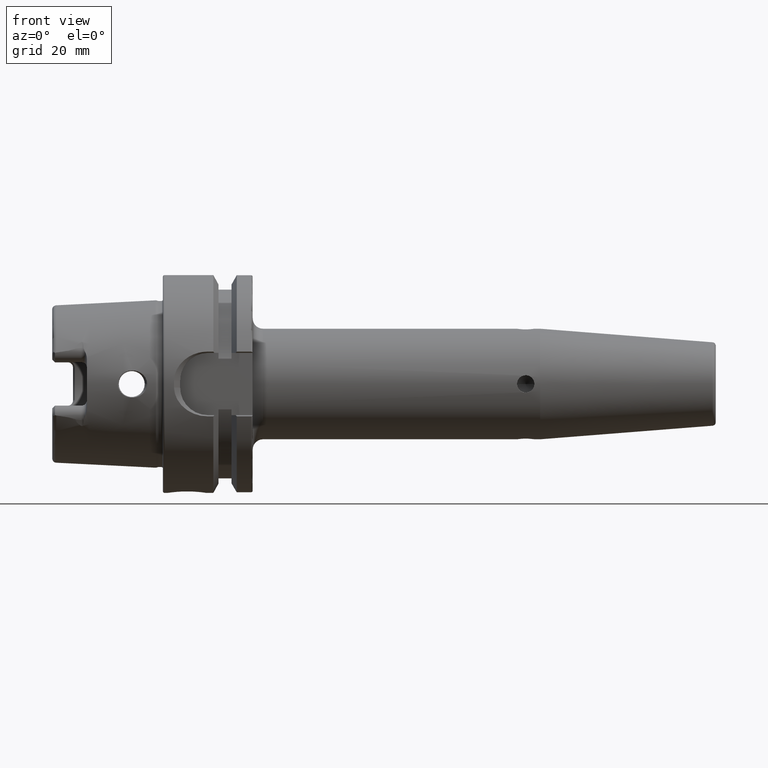
[diagram: clean part render]
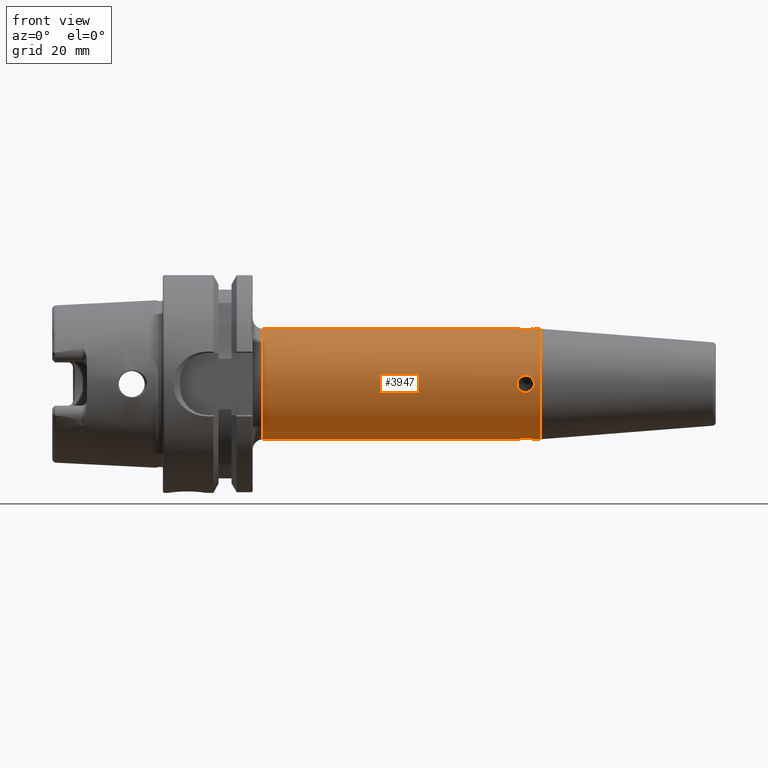
[diagram: same view with one face highlighted and labeled with its STEP entity id]
A machine part, front view. The second image highlights one B-rep face of the part: STEP entity #3947.
In plain terms, the highlighted cylindrical surface (partial cylindrical patch) has radius 16 mm, axis along (1, 0, 0).
Its self-contained STEP definition (entity closure, byte-faithful):
#633=CARTESIAN_POINT('',(1.025E2,0.E0,1.6E1));
#646=CARTESIAN_POINT('',(1.075E2,0.E0,1.6E1));
#653=CARTESIAN_POINT('',(1.075E2,0.E0,-1.6E1));
#666=CARTESIAN_POINT('',(1.025E2,0.E0,-1.6E1));
#717=CARTESIAN_POINT('',(1.075E2,0.E0,1.6E1));
#718=CARTESIAN_POINT('',(1.075E2,-2.406910848106E-1,1.6E1));
#719=CARTESIAN_POINT('',(1.074335961199E2,-7.030030814854E-1,1.598942771882E1));
#720=CARTESIAN_POINT('',(1.071362185885E2,-1.365384792778E0,1.594565535037E1));
#721=CARTESIAN_POINT('',(1.066601899238E2,-1.914087789380E0,1.588742890798E1));
#722=CARTESIAN_POINT('',(1.060599425325E2,-2.302352925106E0,1.583439882307E1));
#723=CARTESIAN_POINT('',(1.053576263392E2,-2.508910881645E0,1.580211606748E1));
#724=CARTESIAN_POINT('',(1.046450275450E2,-2.509216912070E0,1.580206431659E1));
#725=CARTESIAN_POINT('',(1.039431041754E2,-2.303772434312E0,1.583418811362E1));
#726=CARTESIAN_POINT('',(1.033415148570E2,-1.915686332052E0,1.588723540130E1));
#727=CARTESIAN_POINT('',(1.028646847672E2,-1.366917028250E0,1.594552943384E1));
#728=CARTESIAN_POINT('',(1.025665444615E2,-7.038092738104E-1,1.598940382258E1));
#729=CARTESIAN_POINT('',(1.025E2,-2.409867561258E-1,1.6E1));
#730=CARTESIAN_POINT('',(1.025E2,0.E0,1.6E1));
#732=DIRECTION('',(-1.E0,0.E0,0.E0));
#733=VECTOR('',#732,1.675181055301E0);
#734=CARTESIAN_POINT('',(1.091751810553E2,0.E0,1.6E1));
#735=LINE('',#734,#733);
#736=CARTESIAN_POINT('',(1.091751810553E2,0.E0,0.E0));
#737=DIRECTION('',(-1.E0,0.E0,0.E0));
#738=DIRECTION('',(0.E0,0.E0,-1.E0));
#739=AXIS2_PLACEMENT_3D('',#736,#737,#738);
#741=DIRECTION('',(-1.E0,0.E0,0.E0));
#742=VECTOR('',#741,1.675181055301E0);
#743=CARTESIAN_POINT('',(1.091751810553E2,0.E0,-1.6E1));
#744=LINE('',#743,#742);
#745=CARTESIAN_POINT('',(1.025E2,0.E0,-1.6E1));
#746=CARTESIAN_POINT('',(1.025E2,-2.406001388972E-1,-1.6E1));
#747=CARTESIAN_POINT('',(1.025663892994E2,-7.027867262808E-1,
-1.598943176391E1));
#748=CARTESIAN_POINT('',(1.028634103262E2,-1.364826019784E0,-1.594570458819E1));
#749=CARTESIAN_POINT('',(1.033396906555E2,-1.914006851844E0,-1.588744174269E1));
#750=CARTESIAN_POINT('',(1.039396702269E2,-2.302161643642E0,-1.583442579601E1));
#751=CARTESIAN_POINT('',(1.046422486256E2,-2.508933582476E0,-1.580211345539E1));
#752=CARTESIAN_POINT('',(1.053549658485E2,-2.509188780435E0,-1.580206792476E1));
#753=CARTESIAN_POINT('',(1.060565514701E2,-2.303933008733E0,-1.583416521607E1));
#754=CARTESIAN_POINT('',(1.066584611405E2,-1.915716327169E0,-1.588723091854E1));
#755=CARTESIAN_POINT('',(1.071351349981E2,-1.367174506705E0,-1.594550629517E1));
#756=CARTESIAN_POINT('',(1.074334434609E2,-7.039318050395E-1,
-1.598940088701E1));
#757=CARTESIAN_POINT('',(1.075E2,-2.410388216912E-1,-1.6E1));
#758=CARTESIAN_POINT('',(1.075E2,0.E0,-1.6E1));
#760=DIRECTION('',(-1.E0,6.403454297422E-12,0.E0));
#761=VECTOR('',#760,7.35E1);
#762=CARTESIAN_POINT('',(1.025E2,0.E0,-1.6E1));
#763=LINE('',#762,#761);
#764=CARTESIAN_POINT('',(2.9E1,0.E0,0.E0));
#765=DIRECTION('',(1.E0,0.E0,0.E0));
#766=DIRECTION('',(0.E0,0.E0,1.E0));
#767=AXIS2_PLACEMENT_3D('',#764,#765,#766);
#769=DIRECTION('',(-1.E0,-6.403491517587E-12,0.E0));
#770=VECTOR('',#769,7.35E1);
#771=CARTESIAN_POINT('',(1.025E2,0.E0,1.6E1));
#772=LINE('',#771,#770);
#773=CARTESIAN_POINT('',(1.025E2,-1.6E1,0.E0));
#774=CARTESIAN_POINT('',(1.025E2,-1.6E1,2.648430568656E-1));
#775=CARTESIAN_POINT('',(1.025777814474E2,-1.598747692089E1,7.707641735075E-1));
#776=CARTESIAN_POINT('',(1.029518134384E2,-1.593336509168E1,1.509103475650E0));
#777=CARTESIAN_POINT('',(1.035231044026E2,-1.586783343282E1,2.069021119250E0));
#778=CARTESIAN_POINT('',(1.042460066680E2,-1.581536187345E1,2.427102617519E0));
#779=CARTESIAN_POINT('',(1.050014454735E2,-1.579791688637E1,2.534350807527E0));
#780=CARTESIAN_POINT('',(1.056789869897E2,-1.581387962556E1,2.435334417383E0));
#781=CARTESIAN_POINT('',(1.062709165975E2,-1.585128850274E1,2.184373179277E0));
#782=CARTESIAN_POINT('',(1.067865147204E2,-1.590188908293E1,1.789042367926E0));
#783=CARTESIAN_POINT('',(1.071932147221E2,-1.595381751234E1,1.262469368821E0));
#784=CARTESIAN_POINT('',(1.074486680134E2,-1.599182240470E1,6.304076466830E-1));
#785=CARTESIAN_POINT('',(1.075E2,-1.6E1,2.134258936478E-1));
#786=CARTESIAN_POINT('',(1.075E2,-1.6E1,0.E0));
#788=CARTESIAN_POINT('',(1.075E2,-1.6E1,0.E0));
#789=CARTESIAN_POINT('',(1.075E2,-1.6E1,-2.635483451031E-1));
#790=CARTESIAN_POINT('',(1.074229780918E2,-1.598760093383E1,
-7.672133426015E-1));
#791=CARTESIAN_POINT('',(1.070521103194E2,-1.593391121141E1,-1.503013748298E0));
#792=CARTESIAN_POINT('',(1.064861806439E2,-1.586878438038E1,-2.061759314591E0));
#793=CARTESIAN_POINT('',(1.057689577674E2,-1.581615321455E1,-2.422085784343E0));
#794=CARTESIAN_POINT('',(1.050155923708E2,-1.579791719009E1,-2.534348564628E0));
#795=CARTESIAN_POINT('',(1.043357879004E2,-1.581320906502E1,-2.439589012467E0));
#796=CARTESIAN_POINT('',(1.037406163530E2,-1.585032657461E1,-2.191252376873E0));
#797=CARTESIAN_POINT('',(1.032211783164E2,-1.590098759562E1,-1.796982031722E0));
#798=CARTESIAN_POINT('',(1.028105992753E2,-1.595326780920E1,-1.269781965248E0));
#799=CARTESIAN_POINT('',(1.025518623843E2,-1.599173438551E1,
-6.339596491073E-1));
#800=CARTESIAN_POINT('',(1.025E2,-1.6E1,-2.146986843467E-1));
#801=CARTESIAN_POINT('',(1.025E2,-1.6E1,0.E0));
#3084=CARTESIAN_POINT('',(1.091751810553E2,0.E0,-1.6E1));
#3085=CARTESIAN_POINT('',(1.091751810553E2,0.E0,1.6E1));
#3086=VERTEX_POINT('',#3084);
#3087=VERTEX_POINT('',#3085);
#3108=CARTESIAN_POINT('',(2.9E1,0.E0,1.6E1));
#3109=CARTESIAN_POINT('',(2.9E1,0.E0,-1.6E1));
#3110=VERTEX_POINT('',#3108);
#3111=VERTEX_POINT('',#3109);
#3138=VERTEX_POINT('',#653);
#3139=VERTEX_POINT('',#666);
#3154=VERTEX_POINT('',#633);
#3155=VERTEX_POINT('',#646);
#3162=VERTEX_POINT('',#773);
#3163=VERTEX_POINT('',#786);
#3924=CARTESIAN_POINT('',(1.93E1,0.E0,0.E0));
#3925=DIRECTION('',(1.E0,0.E0,0.E0));
#3926=DIRECTION('',(0.E0,0.E0,1.E0));
#3927=AXIS2_PLACEMENT_3D('',#3924,#3925,#3926);
#3928=CYLINDRICAL_SURFACE('',#3927,1.6E1);
#3929=ORIENTED_EDGE('',*,*,#3915,.F.);
#3930=ORIENTED_EDGE('',*,*,#3832,.F.);
#3931=ORIENTED_EDGE('',*,*,#3781,.F.);
#3932=ORIENTED_EDGE('',*,*,#3829,.T.);
#3934=ORIENTED_EDGE('',*,*,#3933,.F.);
#3935=ORIENTED_EDGE('',*,*,#3825,.T.);
#3937=ORIENTED_EDGE('',*,*,#3936,.F.);
#3938=ORIENTED_EDGE('',*,*,#3821,.F.);
#3939=EDGE_LOOP('',(#3929,#3930,#3931,#3932,#3934,#3935,#3937,#3938));
#3940=FACE_OUTER_BOUND('',#3939,.F.);
#3942=ORIENTED_EDGE('',*,*,#3941,.F.);
#3944=ORIENTED_EDGE('',*,*,#3943,.F.);
#3945=EDGE_LOOP('',(#3942,#3944));
#3946=FACE_BOUND('',#3945,.F.);
#3947=ADVANCED_FACE('',(#3940,#3946),#3928,.T.);
#731=B_SPLINE_CURVE_WITH_KNOTS('',3,(#717,#718,#719,#720,#721,#722,#723,#724,
#725,#726,#727,#728,#729,#730),.UNSPECIFIED.,.F.,.F.,(4,1,1,1,1,1,1,1,1,1,1,4),(
0.E0,9.090909090909E-2,1.818181818182E-1,2.727272727273E-1,3.636363636364E-1,
4.545454545455E-1,5.454545454545E-1,6.363636363636E-1,7.272727272727E-1,
8.181818181818E-1,9.090909090909E-1,1.E0),.UNSPECIFIED.);
#740=CIRCLE('',#739,1.6E1);
#759=B_SPLINE_CURVE_WITH_KNOTS('',3,(#745,#746,#747,#748,#749,#750,#751,#752,
#753,#754,#755,#756,#757,#758),.UNSPECIFIED.,.F.,.F.,(4,1,1,1,1,1,1,1,1,1,1,4),(
0.E0,9.090909090909E-2,1.818181818182E-1,2.727272727273E-1,3.636363636364E-1,
4.545454545455E-1,5.454545454545E-1,6.363636363636E-1,7.272727272727E-1,
8.181818181818E-1,9.090909090909E-1,1.E0),.UNSPECIFIED.);
#768=CIRCLE('',#767,1.6E1);
#787=B_SPLINE_CURVE_WITH_KNOTS('',3,(#773,#774,#775,#776,#777,#778,#779,#780,
#781,#782,#783,#784,#785,#786),.UNSPECIFIED.,.F.,.F.,(4,1,1,1,1,1,1,1,1,1,1,4),(
0.E0,9.090909090909E-2,1.818181818182E-1,2.727272727273E-1,3.636363636364E-1,
4.545454545455E-1,5.454545454545E-1,6.363636363636E-1,7.272727272727E-1,
8.181818181818E-1,9.090909090909E-1,1.E0),.UNSPECIFIED.);
#802=B_SPLINE_CURVE_WITH_KNOTS('',3,(#788,#789,#790,#791,#792,#793,#794,#795,
#796,#797,#798,#799,#800,#801),.UNSPECIFIED.,.F.,.F.,(4,1,1,1,1,1,1,1,1,1,1,4),(
0.E0,9.090909090909E-2,1.818181818182E-1,2.727272727273E-1,3.636363636364E-1,
4.545454545455E-1,5.454545454545E-1,6.363636363636E-1,7.272727272727E-1,
8.181818181818E-1,9.090909090909E-1,1.E0),.UNSPECIFIED.);
#3781=EDGE_CURVE('',#3086,#3087,#740,.T.);
#3821=EDGE_CURVE('',#3154,#3110,#772,.T.);
#3825=EDGE_CURVE('',#3139,#3111,#763,.T.);
#3829=EDGE_CURVE('',#3086,#3138,#744,.T.);
#3832=EDGE_CURVE('',#3087,#3155,#735,.T.);
#3915=EDGE_CURVE('',#3155,#3154,#731,.T.);
#3933=EDGE_CURVE('',#3139,#3138,#759,.T.);
#3936=EDGE_CURVE('',#3110,#3111,#768,.T.);
#3941=EDGE_CURVE('',#3162,#3163,#787,.T.);
#3943=EDGE_CURVE('',#3163,#3162,#802,.T.);